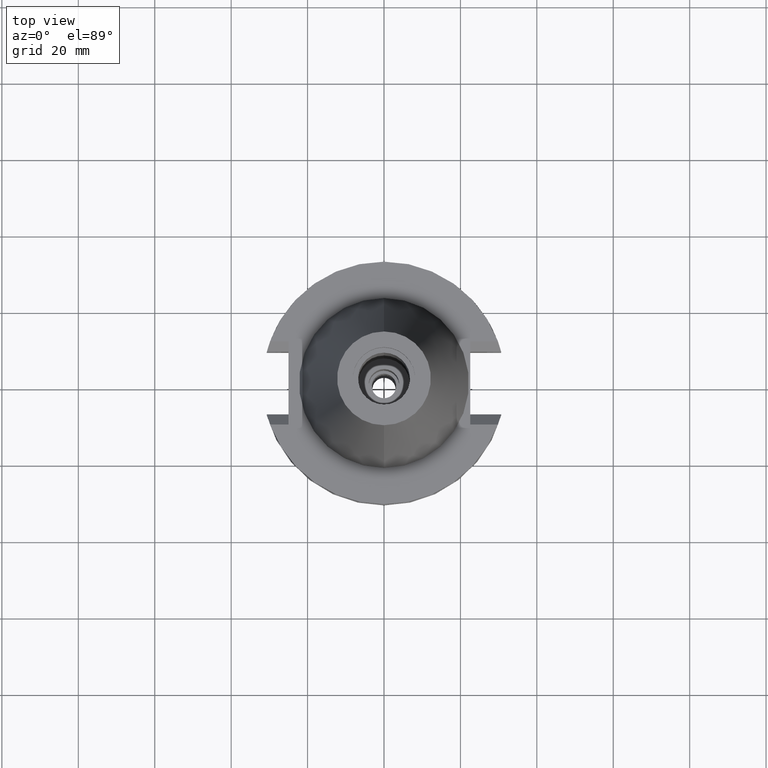
[diagram: clean part render]
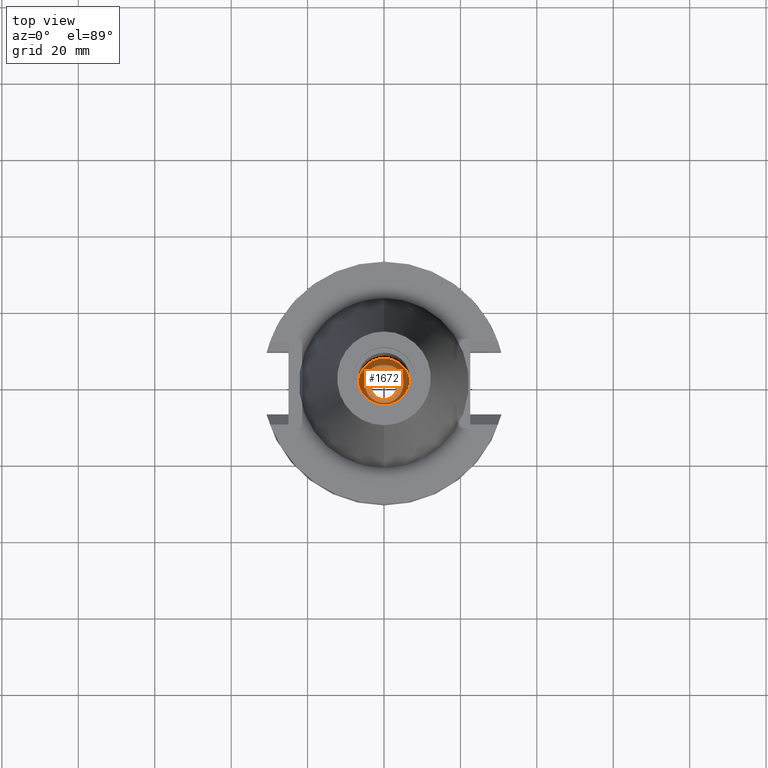
[diagram: same view with one face highlighted and labeled with its STEP entity id]
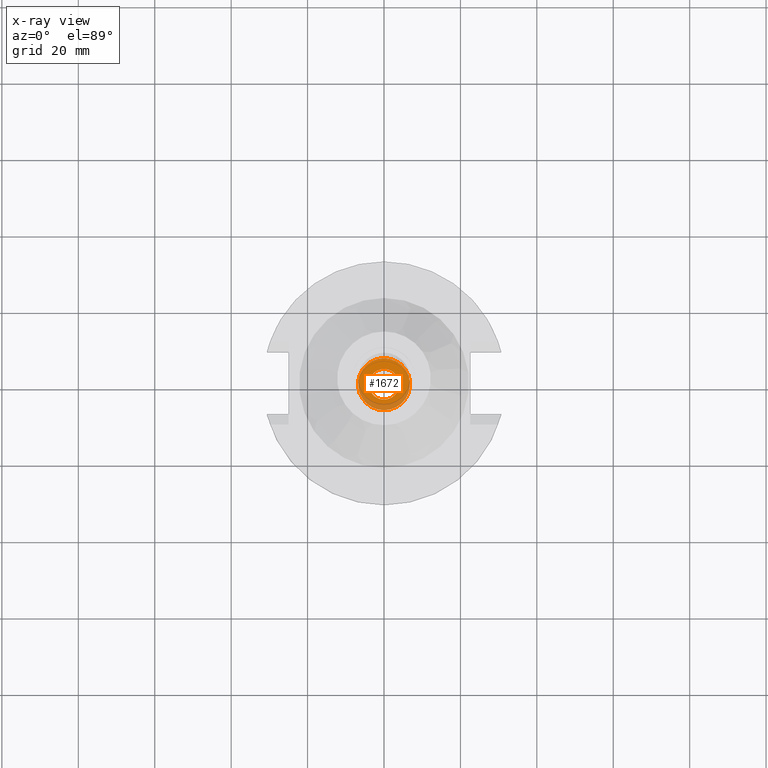
[diagram: x-ray of the same camera — body ghosted, the highlighted face saturated]
A machine part, top view. The second image highlights one B-rep face of the part: STEP entity #1672.
The next image is the same camera in x-ray: the body ghosted, the highlighted face saturated — about 21% of this face is hidden behind the body in this view.
In plain terms, the highlighted planar face has unit normal (0, 0, -1).
Its self-contained STEP definition (entity closure, byte-faithful):
#22 = FACE_BOUND ( 'NONE', #2142, .T. ) ;
#123 = VERTEX_POINT ( 'NONE', #2282 ) ;
#136 = ORIENTED_EDGE ( 'NONE', *, *, #1960, .F. ) ;
#226 = EDGE_CURVE ( 'NONE', #123, #2594, #2668, .T. ) ;
#331 = ORIENTED_EDGE ( 'NONE', *, *, #226, .F. ) ;
#385 = DIRECTION ( 'NONE',  ( 0.0000000000000000000, 1.000000000000000000, 0.0000000000000000000 ) ) ;
#388 = VERTEX_POINT ( 'NONE', #603 ) ;
#569 = CARTESIAN_POINT ( 'NONE',  ( 0.0000000000000000000, 0.0000000000000000000, -21.75000000000000000 ) ) ;
#603 = CARTESIAN_POINT ( 'NONE',  ( 0.0000000000000000000, -6.799999999999999822, -21.75000000000000000 ) ) ;
#630 = DIRECTION ( 'NONE',  ( 0.0000000000000000000, -1.000000000000000000, 0.0000000000000000000 ) ) ;
#720 = CIRCLE ( 'NONE', #1636, 4.000000000000000000 ) ;
#783 = FACE_OUTER_BOUND ( 'NONE', #1700, .T. ) ;
#924 = CARTESIAN_POINT ( 'NONE',  ( 0.0000000000000000000, 6.799999999999999822, -21.75000000000000000 ) ) ;
#1092 = CARTESIAN_POINT ( 'NONE',  ( 0.0000000000000000000, 2.162022075384999775E-14, -21.75000000000000000 ) ) ;
#1148 = DIRECTION ( 'NONE',  ( 0.0000000000000000000, 0.0000000000000000000, -1.000000000000000000 ) ) ;
#1166 = CARTESIAN_POINT ( 'NONE',  ( 0.0000000000000000000, 2.162022075384999775E-14, -21.75000000000000000 ) ) ;
#1412 = AXIS2_PLACEMENT_3D ( 'NONE', #2089, #3050, #630 ) ;
#1538 = DIRECTION ( 'NONE',  ( 0.0000000000000000000, 0.0000000000000000000, 1.000000000000000000 ) ) ;
#1544 = DIRECTION ( 'NONE',  ( 0.0000000000000000000, 0.0000000000000000000, -1.000000000000000000 ) ) ;
#1636 = AXIS2_PLACEMENT_3D ( 'NONE', #1092, #2062, #385 ) ;
#1672 = ADVANCED_FACE ( 'NONE', ( #783, #22 ), #2781, .F. ) ;
#1700 = EDGE_LOOP ( 'NONE', ( #136, #1899 ) ) ;
#1726 = DIRECTION ( 'NONE',  ( 0.0000000000000000000, -1.000000000000000000, 0.0000000000000000000 ) ) ;
#1777 = EDGE_CURVE ( 'NONE', #388, #3092, #2179, .T. ) ;
#1899 = ORIENTED_EDGE ( 'NONE', *, *, #1777, .F. ) ;
#1960 = EDGE_CURVE ( 'NONE', #3092, #388, #3059, .T. ) ;
#2002 = CARTESIAN_POINT ( 'NONE',  ( 0.0000000000000000000, 4.000000000000000000, -21.75000000000000000 ) ) ;
#2037 = AXIS2_PLACEMENT_3D ( 'NONE', #2768, #1538, #2531 ) ;
#2062 = DIRECTION ( 'NONE',  ( 0.0000000000000000000, 0.0000000000000000000, 1.000000000000000000 ) ) ;
#2089 = CARTESIAN_POINT ( 'NONE',  ( 0.0000000000000000000, 2.162022075384999775E-14, -21.75000000000000000 ) ) ;
#2142 = EDGE_LOOP ( 'NONE', ( #2204, #331 ) ) ;
#2179 = CIRCLE ( 'NONE', #1412, 6.799999999999999822 ) ;
#2204 = ORIENTED_EDGE ( 'NONE', *, *, #2328, .F. ) ;
#2274 = AXIS2_PLACEMENT_3D ( 'NONE', #1166, #1148, #2935 ) ;
#2282 = CARTESIAN_POINT ( 'NONE',  ( 0.0000000000000000000, -4.000000000000000000, -21.75000000000000000 ) ) ;
#2328 = EDGE_CURVE ( 'NONE', #2594, #123, #720, .T. ) ;
#2531 = DIRECTION ( 'NONE',  ( 0.0000000000000000000, -1.000000000000000000, 0.0000000000000000000 ) ) ;
#2594 = VERTEX_POINT ( 'NONE', #2002 ) ;
#2668 = CIRCLE ( 'NONE', #2037, 4.000000000000000000 ) ;
#2768 = CARTESIAN_POINT ( 'NONE',  ( 0.0000000000000000000, 2.162022075384999775E-14, -21.75000000000000000 ) ) ;
#2781 = PLANE ( 'NONE',  #2820 ) ;
#2820 = AXIS2_PLACEMENT_3D ( 'NONE', #569, #1544, #1726 ) ;
#2935 = DIRECTION ( 'NONE',  ( 0.0000000000000000000, 1.000000000000000000, 0.0000000000000000000 ) ) ;
#3050 = DIRECTION ( 'NONE',  ( 0.0000000000000000000, 0.0000000000000000000, -1.000000000000000000 ) ) ;
#3059 = CIRCLE ( 'NONE', #2274, 6.799999999999999822 ) ;
#3092 = VERTEX_POINT ( 'NONE', #924 ) ;